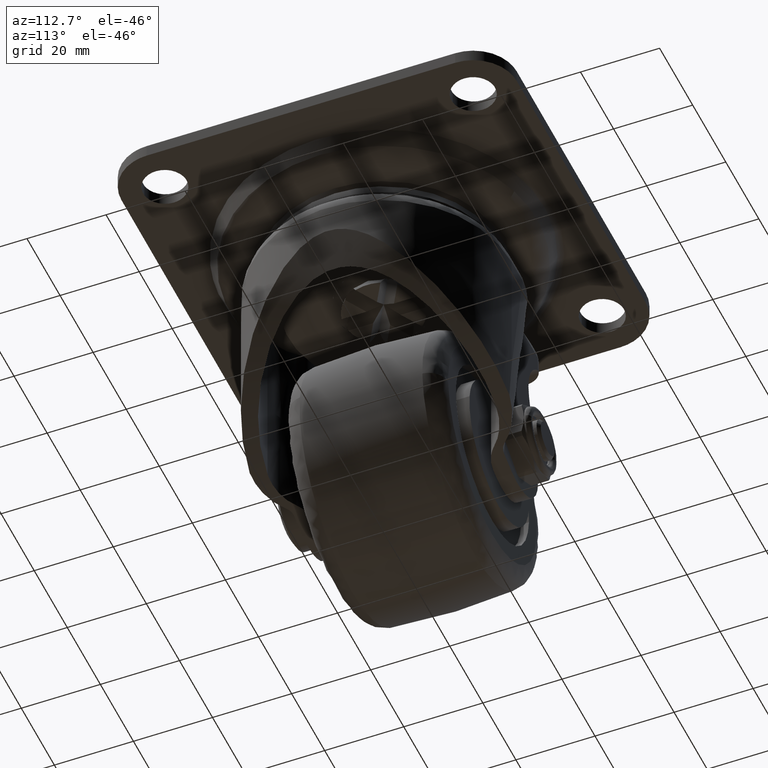
[diagram: clean part render]
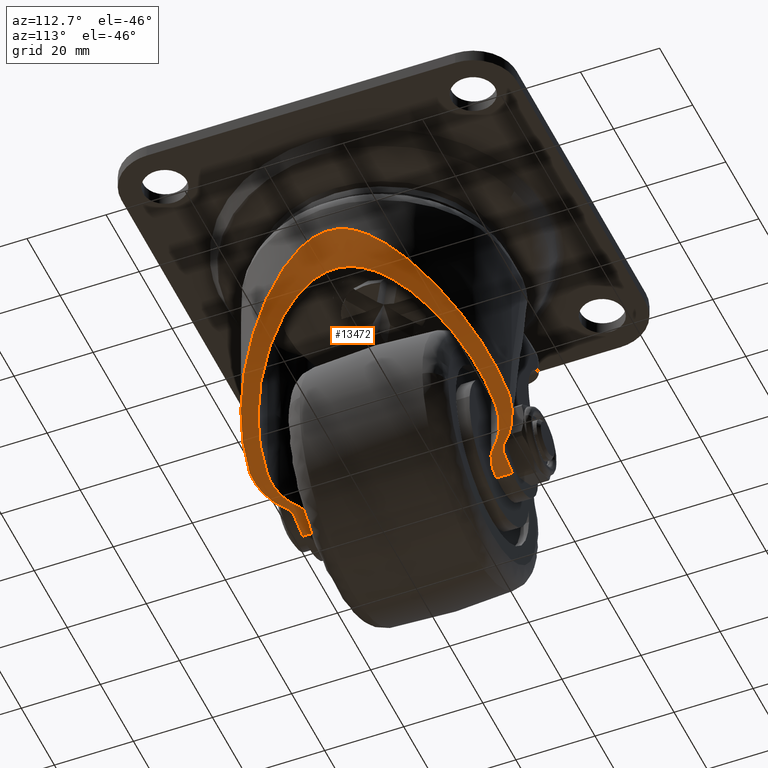
[diagram: same view with one face highlighted and labeled with its STEP entity id]
A machine part, auxiliary view. The second image highlights one B-rep face of the part: STEP entity #13472.
In plain terms, the highlighted face is a freeform B-spline surface patch.
Its self-contained STEP definition (entity closure, byte-faithful):
#12548=CARTESIAN_POINT('',(0.232830167416978,-32.846357652392051,-71.324590027310293));
#12549=VERTEX_POINT('',#12548);
#12557=CARTESIAN_POINT('',(0.232830166705257,32.846357652418703,-71.324590027570991));
#12558=VERTEX_POINT('',#12557);
#12559=CARTESIAN_POINT('',(0.232830167416978,-32.846357652392037,-71.324590027310293));
#12560=CARTESIAN_POINT('',(1.487032370077014,-32.799854193933150,-70.865518084331327));
#12561=CARTESIAN_POINT('',(2.716568204284509,-32.694971646485683,-70.377539065006289));
#12562=CARTESIAN_POINT('',(5.130131427726691,-32.382558781275051,-69.346221203296778));
#12563=CARTESIAN_POINT('',(6.314146117221374,-32.174976172604381,-68.802876387746835));
#12564=CARTESIAN_POINT('',(8.639314372738033,-31.666756698883422,-67.662595743848954));
#12565=CARTESIAN_POINT('',(9.780460625316133,-31.366091709157470,-67.065655678935684));
#12566=CARTESIAN_POINT('',(11.461384834098521,-30.850111365565859,-66.130989563338005));
#12567=CARTESIAN_POINT('',(12.016554383888140,-30.667264933992879,-65.812887837167807));
#12568=CARTESIAN_POINT('',(12.841721474948359,-30.377133740920879,-65.326003838152033));
#12569=CARTESIAN_POINT('',(13.115512310501680,-30.277778518217300,-65.162087080840763));
#12570=CARTESIAN_POINT('',(13.660580598059060,-30.073833568633539,-64.831021930745791));
#12571=CARTESIAN_POINT('',(13.931989494042460,-29.969184466978479,-64.663785818234643));
#12572=CARTESIAN_POINT('',(15.276745760365660,-29.435436140333270,-63.823384436233461));
#12573=CARTESIAN_POINT('',(16.318085818515961,-28.973221839713851,-63.134713861917596));
#12574=CARTESIAN_POINT('',(18.337966194419479,-27.984860307129910,-61.727399687139517));
#12575=CARTESIAN_POINT('',(19.316489243020900,-27.458695699678490,-61.008747685150162));
#12576=CARTESIAN_POINT('',(21.215051876584699,-26.346175611610001,-59.544036820095613));
#12577=CARTESIAN_POINT('',(22.135082365922958,-25.759817749966370,-58.797968277328508));
#12578=CARTESIAN_POINT('',(23.919602461458780,-24.528253539456109,-57.281111876634519));
#12579=CARTESIAN_POINT('',(24.784089284798341,-23.883060389560200,-56.510310248107423));
#12580=CARTESIAN_POINT('',(26.040470471813201,-22.870225706501969,-55.337929449907563));
#12581=CARTESIAN_POINT('',(26.452530223584031,-22.525085529315970,-54.944444272855620));
#12582=CARTESIAN_POINT('',(27.263287051863529,-21.819300060523769,-54.152571791468461));
#12583=CARTESIAN_POINT('',(27.662410819406041,-21.458222469168820,-53.753727288671577));
#12584=CARTESIAN_POINT('',(28.833168806707231,-20.357106730953308,-52.557560857107752));
#12585=CARTESIAN_POINT('',(29.580193048393419,-19.597764155967251,-51.758713928882628));
#12586=CARTESIAN_POINT('',(31.008979783398981,-18.023407177095031,-50.165167491435177));
#12587=CARTESIAN_POINT('',(31.690767167953179,-17.208482771918710,-49.370392740211912));
#12588=CARTESIAN_POINT('',(32.663872997384203,-15.936502898934350,-48.189203876143992));
#12589=CARTESIAN_POINT('',(32.979957225116387,-15.504194590637370,-47.797337557033480));
#12590=CARTESIAN_POINT('',(33.595108269267222,-14.620798918028010,-47.019252069468521));
#12591=CARTESIAN_POINT('',(33.894178712741322,-14.169721678837981,-46.633025138964108));
#12592=CARTESIAN_POINT('',(34.474534418006627,-13.245821147868419,-45.868743849595127));
#12593=CARTESIAN_POINT('',(34.755825905738597,-12.773014596609871,-45.490676852013181));
#12594=CARTESIAN_POINT('',(35.095553465272133,-12.165798002819320,-45.025348804587992));
#12595=CARTESIAN_POINT('',(35.162903200123758,-12.043540485388149,-44.932648805665032));
#12596=CARTESIAN_POINT('',(35.296385315563150,-11.797314461500640,-44.748046563858033));
#12597=CARTESIAN_POINT('',(35.362553200101409,-11.673277192837720,-44.656094504119629));
#12598=CARTESIAN_POINT('',(35.558813021563367,-11.299183348104810,-44.382068149572042));
#12599=CARTESIAN_POINT('',(35.686718555463671,-11.047054281477321,-44.201745415606752));
#12600=CARTESIAN_POINT('',(36.061280259580933,-10.281680598206540,-43.668879467985832));
#12601=CARTESIAN_POINT('',(36.298819302107219,-9.759511430738312,-43.324365320564382));
#12602=CARTESIAN_POINT('',(36.746922242187310,-8.685882561246169,-42.663707888104128));
#12603=CARTESIAN_POINT('',(36.957509715611863,-8.134459254890977,-42.347522538242941));
#12604=CARTESIAN_POINT('',(37.201329978471293,-7.421995648511740,-41.976074904939608));
#12605=CARTESIAN_POINT('',(37.249160715773463,-7.278204546016939,-41.902918740064720));
#12606=CARTESIAN_POINT('',(37.342585032394950,-6.988756513424083,-41.759502607185468));
#12607=CARTESIAN_POINT('',(37.388120564407103,-6.843287380946250,-41.689332373597537));
#12608=CARTESIAN_POINT('',(37.521097864319707,-6.404538422008353,-41.483697620500472));
#12609=CARTESIAN_POINT('',(37.604913792472537,-6.108919601557054,-41.353103371052882));
#12610=CARTESIAN_POINT('',(37.840943130445872,-5.211767175748143,-40.983102078833483));
#12611=CARTESIAN_POINT('',(37.977809171153297,-4.599986840889765,-40.765370654552910));
#12612=CARTESIAN_POINT('',(38.204214282500843,-3.342997834993228,-40.402356412803051));
#12613=CARTESIAN_POINT('',(38.293781870681563,-2.697801028298185,-40.257055301014773));
#12614=CARTESIAN_POINT('',(38.362906145059810,-1.948781954062084,-40.144552588191353));
#12615=CARTESIAN_POINT('',(38.370150944927467,-1.865150951004140,-40.132753137734120));
#12616=CARTESIAN_POINT('',(38.383671868899363,-1.698071101598333,-40.110719969230097));
#12617=CARTESIAN_POINT('',(38.402526242776013,-1.447473253776699,-40.079976358506343));
#12618=CARTESIAN_POINT('',(38.417100302980977,-1.196941337505912,-40.056173782056327));
#12619=CARTESIAN_POINT('',(38.440544272933138,-0.695965689779141,-40.017865219795759));
#12620=CARTESIAN_POINT('',(38.448567635062552,-0.362099552932062,-40.004728423780193));
#12621=CARTESIAN_POINT('',(38.449857598023243,0.639145492566473,-40.002617646210872));
#12622=CARTESIAN_POINT('',(38.420338263872303,1.306170289589202,-40.051048078639653));
#12623=CARTESIAN_POINT('',(38.353151016767256,2.056051184547558,-40.160431867277623));
#12624=CARTESIAN_POINT('',(38.345206588401567,2.139428877387438,-40.173357966946021));
#12625=CARTESIAN_POINT('',(38.328448992514488,2.305469577528087,-40.200603051308107));
#12626=CARTESIAN_POINT('',(38.301991580142293,2.553681760171381,-40.243589108822128));
#12627=CARTESIAN_POINT('',(38.271652577080168,2.799408215672902,-40.292770224801643));
#12628=CARTESIAN_POINT('',(38.206001401475312,3.287701895175813,-40.398981081946957));
#12629=CARTESIAN_POINT('',(38.155607724371293,3.609021191276224,-40.480247452125951));
#12630=CARTESIAN_POINT('',(37.985986840777102,4.561498587095284,-40.752337789973403));
#12631=CARTESIAN_POINT('',(37.848379837090860,5.181212257906449,-40.971365448438881));
#12632=CARTESIAN_POINT('',(37.649485657840138,5.940022966572677,-41.283250167089072));
#12633=CARTESIAN_POINT('',(37.608422657582572,6.090730222655529,-41.347436592810112));
#12634=CARTESIAN_POINT('',(37.524145979250477,6.389082456447125,-41.478707668028640));
#12635=CARTESIAN_POINT('',(37.480887761914232,6.536898628415255,-41.545862215873647));
#12636=CARTESIAN_POINT('',(37.347911068247562,6.976534682730478,-41.751541617410012));
#12637=CARTESIAN_POINT('',(37.254995508339753,7.264549508955494,-41.894273180886870));
#12638=CARTESIAN_POINT('',(36.964512776959857,8.115204324049293,-42.336940032720442));
#12639=CARTESIAN_POINT('',(36.755261607360012,8.664534613411117,-42.651248769435391));
#12640=CARTESIAN_POINT('',(36.309590118538111,9.735015152465691,-43.308642591843054));
#12641=CARTESIAN_POINT('',(36.073147919800867,10.256133325459521,-43.651766594848603));
#12642=CARTESIAN_POINT('',(35.700013550723128,11.020487212527611,-44.182937537636398));
#12643=CARTESIAN_POINT('',(35.572547772290513,11.272370339845841,-44.362759728308703));
#12644=CARTESIAN_POINT('',(35.376890498865762,11.646216389556351,-44.636131714641039));
#12645=CARTESIAN_POINT('',(35.310927891758119,11.770167979575650,-44.727862973119052));
#12646=CARTESIAN_POINT('',(35.177539867161983,12.016798683206069,-44.912464159294110));
#12647=CARTESIAN_POINT('',(35.110093131251681,12.139513644907280,-45.005362760756512));
#12648=CARTESIAN_POINT('',(34.770091147823187,12.748561534228520,-45.471387191662167));
#12649=CARTESIAN_POINT('',(34.488637677341352,13.222539666438680,-45.849919723873043));
#12650=CARTESIAN_POINT('',(33.908101661346770,14.148347598388140,-46.614929184340689));
#12651=CARTESIAN_POINT('',(33.609012679695411,14.600159672573851,-47.001419127703429));
#12652=CARTESIAN_POINT('',(32.993989461251083,15.484685238084211,-47.779823390505797));
#12653=CARTESIAN_POINT('',(32.678051492476513,15.917388076952520,-48.171745649512829));
#12654=CARTESIAN_POINT('',(31.705660504220400,17.190140495638079,-49.352794304367812));
#12655=CARTESIAN_POINT('',(31.024716814573800,18.005036808651500,-50.147064722523503));
#12656=CARTESIAN_POINT('',(29.598512678636439,19.578583745720490,-51.738819811970266));
#12657=CARTESIAN_POINT('',(28.853226305146869,20.337140514156150,-52.536380470203142));
#12658=CARTESIAN_POINT('',(27.685895981739769,21.436661853008321,-53.730061640128334));
#12659=CARTESIAN_POINT('',(27.288535027123480,21.796748415546649,-54.127533611406243));
#12660=CARTESIAN_POINT('',(26.679826787436902,22.327478627004272,-54.722614265082662));
#12661=CARTESIAN_POINT('',(26.474730378775451,22.502883886259280,-54.920862003953559));
#12662=CARTESIAN_POINT('',(26.061494647271601,22.849555492196160,-55.315736586367670));
#12663=CARTESIAN_POINT('',(25.853215877701810,23.020946265287449,-55.512501685936563));
#12664=CARTESIAN_POINT('',(24.803484814043710,23.868307852702099,-56.492822515905317));
#12665=CARTESIAN_POINT('',(23.937066149792649,24.515616391674250,-57.265835657914771));
#12666=CARTESIAN_POINT('',(22.149388844943900,25.750518814647091,-58.786231990970897));
#12667=CARTESIAN_POINT('',(21.228132302717391,26.338097995326521,-59.533629112877733));
#12668=CARTESIAN_POINT('',(19.328035681303628,27.452337146760229,-61.000152084638621));
#12669=CARTESIAN_POINT('',(18.349203733522319,27.978998258579189,-61.719287614523822));
#12670=CARTESIAN_POINT('',(16.329896650638752,28.967801808270188,-63.126764203282768));
#12671=CARTESIAN_POINT('',(15.289437212750940,29.429960089711891,-63.815113550472937));
#12672=CARTESIAN_POINT('',(13.946757943057170,29.963428739494368,-64.654638355180253));
#12673=CARTESIAN_POINT('',(13.676112012920580,30.067903686444641,-64.821497041018645));
#12674=CARTESIAN_POINT('',(13.130489291831910,30.272286805819078,-65.153076722947858));
#12675=CARTESIAN_POINT('',(12.855936551432650,30.372030455161401,-65.317535674011935));
#12676=CARTESIAN_POINT('',(12.029166859005050,30.663033150813192,-65.805601393073488));
#12677=CARTESIAN_POINT('',(11.472975356626479,30.846394581042919,-66.124424540256783));
#12678=CARTESIAN_POINT('',(9.789139095469174,31.363741140216302,-67.061067086004371));
#12679=CARTESIAN_POINT('',(8.646255895819293,31.665078220811541,-67.659074326319299));
#12680=CARTESIAN_POINT('',(6.318112767715578,32.174269662507740,-68.801047803876102));
#12681=CARTESIAN_POINT('',(5.132859775818926,32.382151449036172,-69.345018135600469));
#12682=CARTESIAN_POINT('',(2.717433877789981,32.694913686172953,-70.377206348481977));
#12683=CARTESIAN_POINT('',(1.487273031691567,32.799845270675732,-70.865429995682817));
#12684=CARTESIAN_POINT('',(0.232830166705257,32.846357652418703,-71.324590027570991));
#12685=B_SPLINE_CURVE_WITH_KNOTS('',3,(#12559,#12560,#12561,#12562,#12563,#12564,#12565,#12566,#12567,#12568,#12569,#12570,#12571,#12572,#12573,#12574,#12575,#12576,#12577,#12578,#12579,#12580,#12581,#12582,#12583,#12584,#12585,#12586,#12587,#12588,#12589,#12590,#12591,#12592,#12593,#12594,#12595,#12596,#12597,#12598,#12599,#12600,#12601,#12602,#12603,#12604,#12605,#12606,#12607,#12608,#12609,#12610,#12611,#12612,#12613,#12614,#12615,#12616,#12617,#12618,#12619,#12620,#12621,#12622,#12623,#12624,#12625,#12626,#12627,#12628,#12629,#12630,#12631,#12632,#12633,#12634,#12635,#12636,#12637,#12638,#12639,#12640,#12641,#12642,#12643,#12644,#12645,#12646,#12647,#12648,#12649,#12650,#12651,#12652,#12653,#12654,#12655,#12656,#12657,#12658,#12659,#12660,#12661,#12662,#12663,#12664,#12665,#12666,#12667,#12668,#12669,#12670,#12671,#12672,#12673,#12674,#12675,#12676,#12677,#12678,#12679,#12680,#12681,#12682,#12683,#12684),.UNSPECIFIED.,.F.,.U.,(4,2,2,2,2,2,2,2,2,2,2,2,2,2,2,2,2,2,2,2,2,2,2,2,2,2,2,2,2,1,2,2,2,2,1,2,2,2,2,2,2,2,2,2,2,2,2,2,2,2,2,2,2,2,2,2,2,2,2,2,2,2,2,4),(0.0,0.031250000000000,0.062500000000000,0.093750000000000,0.109375000000000,0.117187500000000,0.125000000000000,0.156250000000000,0.187500000000000,0.218750000000000,0.250000000000000,0.265625000000000,0.281250000000000,0.312500000000000,0.343750000000000,0.359375000000000,0.375000000000000,0.390625000000000,0.394531250000000,0.398437500000000,0.406250000000000,0.421875000000000,0.437500000000000,0.441406250000000,0.445312500000000,0.453125000000000,0.468750000000000,0.484374999999999,0.486328124999999,0.488281249999999,0.492187499999999,0.500000000000000,0.515625000000000,0.517578125000000,0.519531250000000,0.523437500000000,0.531250000000000,0.546875000000000,0.550781250000000,0.554687500000000,0.562500000000000,0.578125000000000,0.593750000000000,0.601562500000000,0.605468750000000,0.609375000000000,0.625000000000000,0.640625000000001,0.656250000000001,0.687500000000001,0.718750000000001,0.734375000000001,0.742187500000001,0.750000000000001,0.781250000000002,0.812500000000002,0.843750000000002,0.875000000000002,0.882812500000002,0.890625000000002,0.906250000000002,0.937500000000001,0.968750000000000,1.0),.UNSPECIFIED.);
#12686=EDGE_CURVE('',#12549,#12558,#12685,.T.);
#12712=CARTESIAN_POINT('',(-17.876679579009849,22.500000000000000,-75.501103269493200));
#12713=VERTEX_POINT('',#12712);
#12770=CARTESIAN_POINT('',(-17.876679579009849,26.500000000000000,-75.501103269493200));
#12771=VERTEX_POINT('',#12770);
#12787=CARTESIAN_POINT('',(-17.876679579009849,26.500000000000000,-75.501103269493200));
#12788=CARTESIAN_POINT('',(-17.876679579009849,22.500000000000000,-75.501103269493200));
#12789=QUASI_UNIFORM_CURVE('',1,(#12787,#12788),.UNSPECIFIED.,.F.,.U.);
#12790=EDGE_CURVE('',#12771,#12713,#12789,.T.);
#12811=CARTESIAN_POINT('',(-17.876679579009849,-22.500000000000000,-75.501103269493200));
#12812=VERTEX_POINT('',#12811);
#12828=CARTESIAN_POINT('',(-17.876679579009849,-26.500000000000000,-75.501103269493200));
#12829=VERTEX_POINT('',#12828);
#12830=CARTESIAN_POINT('',(-17.876679579009849,-22.500000000000000,-75.501103269493200));
#12831=CARTESIAN_POINT('',(-17.876679579009849,-26.500000000000000,-75.501103269493200));
#12832=QUASI_UNIFORM_CURVE('',1,(#12830,#12831),.UNSPECIFIED.,.F.,.U.);
#12833=EDGE_CURVE('',#12812,#12829,#12832,.T.);
#13060=CARTESIAN_POINT('',(39.797046217230722,34.488675535038972,-37.707545313512547));
#13061=CARTESIAN_POINT('',(39.797046217230722,-34.529733482077823,-37.707545313512547));
#13062=CARTESIAN_POINT('',(19.697455050496767,34.488675535038965,-73.384386352995676));
#13063=CARTESIAN_POINT('',(19.697455050496767,-34.529733482077830,-73.384386352995676));
#13064=CARTESIAN_POINT('',(-21.182278384622773,34.488675535038972,-75.767230430976284));
#13065=CARTESIAN_POINT('',(-21.182278384622773,-34.529733482077823,-75.767230430976284));
#13073=(BOUNDED_SURFACE()B_SPLINE_SURFACE(1,2,((#13060,#13062,#13064),(#13061,#13063,#13065)),.UNSPECIFIED.,.F.,.F.,.U.)B_SPLINE_SURFACE_WITH_KNOTS((2,2),(3,3),(0.0,69.018409017116795),(0.0,76.563854094344777),.UNSPECIFIED.)GEOMETRIC_REPRESENTATION_ITEM()RATIONAL_B_SPLINE_SURFACE(((1.0,0.876268924757007,0.996744951467555),(1.0,0.876268924757007,0.996744951467555)))REPRESENTATION_ITEM('')SURFACE());
#13074=ORIENTED_EDGE('',*,*,#12686,.F.);
#13075=CARTESIAN_POINT('',(-10.181566704599421,-27.578856664414101,-74.303561666217604));
#13076=VERTEX_POINT('',#13075);
#13077=CARTESIAN_POINT('',(-10.181566704599421,-27.578856664414101,-74.303561666217604));
#13078=CARTESIAN_POINT('',(-9.851037112674362,-27.975285704206019,-74.234379869411626));
#13079=CARTESIAN_POINT('',(-9.503330936508398,-28.350052385319270,-74.159275528325082));
#13080=CARTESIAN_POINT('',(-8.775425824399001,-29.058117680902100,-73.996084503044997));
#13081=CARTESIAN_POINT('',(-8.395220781606049,-29.391409465701571,-73.907998881167472));
#13082=CARTESIAN_POINT('',(-7.603116055095361,-30.017053378531280,-73.717383438205545));
#13083=CARTESIAN_POINT('',(-7.191215542689001,-30.309405313501319,-73.614856426792599));
#13084=CARTESIAN_POINT('',(-6.549489083674553,-30.716725946941260,-73.448850767459490));
#13085=CARTESIAN_POINT('',(-6.331177632265849,-30.847484774188789,-73.391359208454077));
#13086=CARTESIAN_POINT('',(-5.891568783645475,-31.095658049858571,-73.273411860340246));
#13087=CARTESIAN_POINT('',(-5.669737030207993,-31.213440401900609,-73.212821718910789));
#13088=CARTESIAN_POINT('',(-4.998392883233848,-31.548357999503061,-73.026063900263424));
#13089=CARTESIAN_POINT('',(-4.543047199289806,-31.747106678045640,-72.894913743482348));
#13090=CARTESIAN_POINT('',(-3.617619517868861,-32.096999448438780,-72.618476521870136));
#13091=CARTESIAN_POINT('',(-3.147535885927589,-32.248140397971277,-72.473190756159966));
#13092=CARTESIAN_POINT('',(-2.550935203875251,-32.407377672105753,-72.282111677718575));
#13093=CARTESIAN_POINT('',(-2.431164128605089,-32.437737473713838,-72.243421784234485));
#13094=CARTESIAN_POINT('',(-2.190720969167179,-32.495470531206742,-72.165075836598049));
#13095=CARTESIAN_POINT('',(-2.069941067375603,-32.522866464586599,-72.125383969525075));
#13096=CARTESIAN_POINT('',(-1.707017326109828,-32.600387478912317,-72.005086050241033));
#13097=CARTESIAN_POINT('',(-1.464891542972800,-32.645733227872022,-71.923459932053163));
#13098=CARTESIAN_POINT('',(-0.738046062984854,-32.763209420260807,-71.674260103767836));
#13099=CARTESIAN_POINT('',(-0.252862313296284,-32.816822174389181,-71.502366617351697));
#13100=CARTESIAN_POINT('',(0.232830167416973,-32.846357652392051,-71.324590027310293));
#13101=B_SPLINE_CURVE_WITH_KNOTS('',3,(#13077,#13078,#13079,#13080,#13081,#13082,#13083,#13084,#13085,#13086,#13087,#13088,#13089,#13090,#13091,#13092,#13093,#13094,#13095,#13096,#13097,#13098,#13099,#13100),.UNSPECIFIED.,.F.,.U.,(4,2,2,2,2,2,2,2,2,2,2,4),(0.0,0.125000000000001,0.250000000000002,0.375000000000003,0.437500000000003,0.500000000000003,0.625000000000004,0.750000000000006,0.781250000000005,0.812500000000005,0.875000000000004,1.0),.UNSPECIFIED.);
#13102=EDGE_CURVE('',#13076,#12549,#13101,.T.);
#13103=ORIENTED_EDGE('',*,*,#13102,.F.);
#13104=CARTESIAN_POINT('',(-12.485738634844100,-26.500000000000000,-74.748329386114008));
#13105=VERTEX_POINT('',#13104);
#13106=CARTESIAN_POINT('',(-10.181566704599421,-27.578856664414101,-74.303561666217604));
#13107=CARTESIAN_POINT('',(-10.323691307614761,-27.408395921166971,-74.333309185493164));
#13108=CARTESIAN_POINT('',(-10.481528320229501,-27.257069214624629,-74.365917798337037));
#13109=CARTESIAN_POINT('',(-10.740725179608010,-27.057290968137341,-74.418430342145015));
#13110=CARTESIAN_POINT('',(-10.830899559459571,-26.995276487563800,-74.436541274863231));
#13111=CARTESIAN_POINT('',(-10.971998698946180,-26.909319690455739,-74.464587330926676));
#13112=CARTESIAN_POINT('',(-11.019894689266360,-26.881927225899460,-74.474060353181727));
#13113=CARTESIAN_POINT('',(-11.116495449349150,-26.830135467434900,-74.493066127597174));
#13114=CARTESIAN_POINT('',(-11.165327690526681,-26.805657063670850,-74.502624261879546));
#13115=CARTESIAN_POINT('',(-11.412105537565720,-26.690228710526839,-74.550666759630786));
#13116=CARTESIAN_POINT('',(-11.617808512942521,-26.619919844858149,-74.589890507653323));
#13117=CARTESIAN_POINT('',(-11.885545699752869,-26.560139677561072,-74.639688791010784));
#13118=CARTESIAN_POINT('',(-11.939697704810120,-26.549600546356299,-74.649700121564649));
#13119=CARTESIAN_POINT('',(-12.048077041083131,-26.531587972891899,-74.669612307711191));
#13120=CARTESIAN_POINT('',(-12.102420428031669,-26.524084489101629,-74.679534913843653));
#13121=CARTESIAN_POINT('',(-12.265909766373310,-26.506056251145541,-74.709198983234032));
#13122=CARTESIAN_POINT('',(-12.375513587042191,-26.500000000000000,-74.728836482404944));
#13123=CARTESIAN_POINT('',(-12.485738634844100,-26.500000000000000,-74.748329386114108));
#13124=B_SPLINE_CURVE_WITH_KNOTS('',3,(#13106,#13107,#13108,#13109,#13110,#13111,#13112,#13113,#13114,#13115,#13116,#13117,#13118,#13119,#13120,#13121,#13122,#13123),.UNSPECIFIED.,.F.,.U.,(4,2,2,2,2,2,2,2,4),(0.0,0.249999999999999,0.374999999999999,0.437499999999998,0.499999999999998,0.750000000000002,0.812500000000002,0.875000000000002,1.0),.UNSPECIFIED.);
#13125=EDGE_CURVE('',#13076,#13105,#13124,.T.);
#13126=ORIENTED_EDGE('',*,*,#13125,.T.);
#13127=CARTESIAN_POINT('',(-12.485738634844100,-26.500000000000000,-74.748329386114008));
#13128=CARTESIAN_POINT('',(-15.167541599746395,-26.499999999999996,-75.222594825601888));
#13129=CARTESIAN_POINT('',(-17.876679579009849,-26.500000000000000,-75.501103269493200));
#13137=(BOUNDED_CURVE()B_SPLINE_CURVE(2,(#13127,#13128,#13129),.UNSPECIFIED.,.F.,.U.)CURVE()GEOMETRIC_REPRESENTATION_ITEM()QUASI_UNIFORM_CURVE()RATIONAL_B_SPLINE_CURVE((1.0,0.999341362783582,1.0))REPRESENTATION_ITEM(''));
#13138=EDGE_CURVE('',#13105,#12829,#13137,.T.);
#13139=ORIENTED_EDGE('',*,*,#13138,.T.);
#13140=ORIENTED_EDGE('',*,*,#12833,.F.);
#13141=CARTESIAN_POINT('',(-15.758470243372800,-22.500000000000000,-75.252863711003016));
#13142=VERTEX_POINT('',#13141);
#13143=CARTESIAN_POINT('',(-17.876679579009849,-22.500000000000000,-75.501103269493200));
#13144=CARTESIAN_POINT('',(-16.815809968137003,-22.500000000000000,-75.392043400843320));
#13145=CARTESIAN_POINT('',(-15.758470243372800,-22.500000000000000,-75.252863711003016));
#13153=(BOUNDED_CURVE()B_SPLINE_CURVE(2,(#13143,#13144,#13145),.UNSPECIFIED.,.F.,.U.)CURVE()GEOMETRIC_REPRESENTATION_ITEM()QUASI_UNIFORM_CURVE()RATIONAL_B_SPLINE_CURVE((1.0,0.999898918582804,1.0))REPRESENTATION_ITEM(''));
#13154=EDGE_CURVE('',#12812,#13142,#13153,.T.);
#13155=ORIENTED_EDGE('',*,*,#13154,.T.);
#13156=CARTESIAN_POINT('',(-10.093313650152520,-25.017332216965350,-74.285034393227292));
#13157=VERTEX_POINT('',#13156);
#13158=CARTESIAN_POINT('',(-10.093313650152520,-25.017332216965350,-74.285034393227292));
#13159=CARTESIAN_POINT('',(-10.271555484457290,-24.816070066546690,-74.322565218050514));
#13160=CARTESIAN_POINT('',(-10.459193722926210,-24.626932755235732,-74.361396621920960));
#13161=CARTESIAN_POINT('',(-10.852162694115931,-24.271363346779431,-74.441003489346969));
#13162=CARTESIAN_POINT('',(-11.057498348660291,-24.104937886513241,-74.481780791974160));
#13163=CARTESIAN_POINT('',(-11.485516648861481,-23.794230928787321,-74.564764201143291));
#13164=CARTESIAN_POINT('',(-11.708199653033390,-23.649950141718250,-74.606971360715548));
#13165=CARTESIAN_POINT('',(-12.055469425721521,-23.450354165654421,-74.671037820202272));
#13166=CARTESIAN_POINT('',(-12.173529189061631,-23.386614637894560,-74.692534081604876));
#13167=CARTESIAN_POINT('',(-12.411340629280970,-23.266204423554310,-74.735232537313166));
#13168=CARTESIAN_POINT('',(-12.531424496147689,-23.209333058631071,-74.756496731244312));
#13169=CARTESIAN_POINT('',(-12.895146624769200,-23.048507740525629,-74.819972384825959));
#13170=CARTESIAN_POINT('',(-13.389343964406491,-22.860117994843360,-74.903758449683068));
#13171=CARTESIAN_POINT('',(-13.901844767265221,-22.723070924096412,-74.985277950740297));
#13172=CARTESIAN_POINT('',(-14.293268537737960,-22.639980792014772,-75.045386041010374));
#13173=CARTESIAN_POINT('',(-14.425196841584400,-22.615533659506230,-75.065290960493599));
#13174=CARTESIAN_POINT('',(-14.689997028523390,-22.573609935195609,-75.104512625334209));
#13175=CARTESIAN_POINT('',(-14.822740159707569,-22.556135971707150,-75.123812073697962));
#13176=CARTESIAN_POINT('',(-15.221997139442070,-22.514136101706899,-75.180761694688456));
#13177=CARTESIAN_POINT('',(-15.489535844174750,-22.500000000000000,-75.217462900871126));
#13178=CARTESIAN_POINT('',(-15.758470243372850,-22.500000000000000,-75.252863711002917));
#13179=B_SPLINE_CURVE_WITH_KNOTS('',3,(#13158,#13159,#13160,#13161,#13162,#13163,#13164,#13165,#13166,#13167,#13168,#13169,#13170,#13171,#13172,#13173,#13174,#13175,#13176,#13177,#13178),.UNSPECIFIED.,.F.,.U.,(4,2,2,2,2,2,1,2,2,2,4),(0.0,0.124999999999999,0.249999999999998,0.374999999999997,0.437499999999996,0.499999999999996,0.624999999999997,0.749999999999998,0.812499999999999,0.874999999999999,1.0),.UNSPECIFIED.);
#13180=EDGE_CURVE('',#13157,#13142,#13179,.T.);
#13181=ORIENTED_EDGE('',*,*,#13180,.F.);
#13182=CARTESIAN_POINT('',(-1.228536355637912,-28.873505000000101,-71.842425001255606));
#13183=VERTEX_POINT('',#13182);
#13184=CARTESIAN_POINT('',(-10.093313650152540,-25.017332216965389,-74.285034393227349));
#13185=CARTESIAN_POINT('',(-9.811954354638369,-25.335029670405032,-74.225791026071235));
#13186=CARTESIAN_POINT('',(-9.514026345614013,-25.633797199400131,-74.161372308689636));
#13187=CARTESIAN_POINT('',(-8.886668669519706,-26.195003563718991,-74.021272054799041));
#13188=CARTESIAN_POINT('',(-8.557232833609763,-26.457436045230100,-73.945591516309150));
#13189=CARTESIAN_POINT('',(-8.126038035581340,-26.762891316665758,-73.843158742666603));
#13190=CARTESIAN_POINT('',(-8.038695026516631,-26.822936097175649,-73.822247780509315));
#13191=CARTESIAN_POINT('',(-7.862826816660459,-26.940247527997929,-73.779802565810357));
#13192=CARTESIAN_POINT('',(-7.597291778689200,-27.112039289306519,-73.715211491396389));
#13193=CARTESIAN_POINT('',(-7.326691827829495,-27.271569009521251,-73.647819410793588));
#13194=CARTESIAN_POINT('',(-6.779023367848252,-27.574826070342240,-73.509202995168351));
#13195=CARTESIAN_POINT('',(-6.405305170189605,-27.755970219838041,-73.411687372261909));
#13196=CARTESIAN_POINT('',(-5.641657430049897,-28.077960760415770,-73.205806424596645));
#13197=CARTESIAN_POINT('',(-5.251725052093041,-28.218801620897750,-73.097441924950004));
#13198=CARTESIAN_POINT('',(-4.754439101762872,-28.369937245249730,-72.954699224124354));
#13199=CARTESIAN_POINT('',(-4.654636397344729,-28.398867054818670,-72.925828209883704));
#13200=CARTESIAN_POINT('',(-4.455031784671339,-28.453979945316629,-72.867635100210933));
#13201=CARTESIAN_POINT('',(-4.155321102800982,-28.532621326586700,-72.779581456253169));
#13202=CARTESIAN_POINT('',(-3.854734422855259,-28.599417477127020,-72.689226559986636));
#13203=CARTESIAN_POINT('',(-3.252469487019089,-28.717713017074828,-72.505419760595629));
#13204=CARTESIAN_POINT('',(-2.849509019554989,-28.776220756090911,-72.378754001568709));
#13205=CARTESIAN_POINT('',(-2.040962228352844,-28.854118428099820,-72.116980088063684));
#13206=CARTESIAN_POINT('',(-1.635375348557087,-28.873504996057779,-71.981872249263944));
#13207=CARTESIAN_POINT('',(-1.228536355637910,-28.873505000000069,-71.842425001255592));
#13208=B_SPLINE_CURVE_WITH_KNOTS('',3,(#13184,#13185,#13186,#13187,#13188,#13189,#13190,#13191,#13192,#13193,#13194,#13195,#13196,#13197,#13198,#13199,#13200,#13201,#13202,#13203,#13204,#13205,#13206,#13207),.UNSPECIFIED.,.F.,.U.,(4,2,2,2,1,2,2,2,2,1,2,2,4),(0.0,0.124999999999998,0.249999999999996,0.281249999999997,0.312499999999997,0.374999999999997,0.499999999999996,0.624999999999996,0.656249999999997,0.687499999999997,0.749999999999998,0.874999999999999,1.0),.UNSPECIFIED.);
#13209=EDGE_CURVE('',#13157,#13183,#13208,.T.);
#13210=ORIENTED_EDGE('',*,*,#13209,.T.);
#13211=CARTESIAN_POINT('',(-1.228536158738858,28.873505000000101,-71.842424933766992));
#13212=VERTEX_POINT('',#13211);
#13213=CARTESIAN_POINT('',(-1.228536355637912,-28.873505000000101,-71.842425001255606));
#13214=CARTESIAN_POINT('',(-0.131497172633602,-28.873505000000112,-71.466406237838626));
#13215=CARTESIAN_POINT('',(0.945706109971918,-28.821227118329890,-71.068789007877655));
#13216=CARTESIAN_POINT('',(3.063652193020786,-28.624332732421681,-70.232275309336472));
#13217=CARTESIAN_POINT('',(4.104384212324145,-28.479669942692102,-69.793374619320829));
#13218=CARTESIAN_POINT('',(6.151628110804086,-28.106103106054899,-68.875810969070542));
#13219=CARTESIAN_POINT('',(7.158133897722530,-27.877175159115978,-68.397144674718888));
#13220=CARTESIAN_POINT('',(9.138473649218437,-27.340222718838959,-67.401288103263909));
#13221=CARTESIAN_POINT('',(10.112304377540150,-27.032188775442481,-66.884094689693811));
#13222=CARTESIAN_POINT('',(11.309791844010100,-26.599378274342499,-66.214184220948368));
#13223=CARTESIAN_POINT('',(11.548298030382661,-26.510421948520641,-66.079030872907907));
#13224=CARTESIAN_POINT('',(12.023338423695540,-26.327739555596569,-65.806397166907459));
#13225=CARTESIAN_POINT('',(12.259742812926421,-26.234056258397072,-65.668986850689961));
#13226=CARTESIAN_POINT('',(12.962893157967679,-25.947198945571110,-65.255161470137281));
#13227=CARTESIAN_POINT('',(13.424618228425789,-25.747828776966031,-64.976559176602166));
#13228=CARTESIAN_POINT('',(14.789571536106781,-25.126211550727181,-64.133080304163101));
#13229=CARTESIAN_POINT('',(15.672621630141940,-24.680534632516260,-63.560525548775942));
#13230=CARTESIAN_POINT('',(17.388518534634329,-23.729420288579220,-62.397598816943550));
#13231=CARTESIAN_POINT('',(18.221358517026889,-23.223982487612432,-61.807217620221621));
#13232=CARTESIAN_POINT('',(19.839125109187702,-22.153641098382788,-60.611582128169758));
#13233=CARTESIAN_POINT('',(20.624051646835330,-21.588752807914261,-60.006314319993130));
#13234=CARTESIAN_POINT('',(22.147067549432080,-20.397144877225880,-58.784484655629022));
#13235=CARTESIAN_POINT('',(22.885165102731680,-19.770464014604759,-58.167900253750091));
#13236=CARTESIAN_POINT('',(23.778357541065919,-18.944845311351571,-57.393068830567458));
#13237=CARTESIAN_POINT('',(23.955505506759280,-18.777603817322390,-57.237911398294052));
#13238=CARTESIAN_POINT('',(24.305608175235040,-18.439950679340988,-56.928382088530427));
#13239=CARTESIAN_POINT('',(24.478720114367398,-18.269395629752420,-56.773874584681970));
#13240=CARTESIAN_POINT('',(24.992254618865491,-17.752428987006621,-56.311291486529008));
#13241=CARTESIAN_POINT('',(25.326881154749099,-17.400724585830289,-56.004149441449457));
#13242=CARTESIAN_POINT('',(26.307524884523069,-16.323214144373811,-55.087996231334650));
#13243=CARTESIAN_POINT('',(26.930416484168511,-15.575208543887550,-54.484114330615263));
#13244=CARTESIAN_POINT('',(27.816543601375191,-14.400880730902070,-53.596825981838847));
#13245=CARTESIAN_POINT('',(28.103859207925069,-14.000674133158901,-53.304183860834812));
#13246=CARTESIAN_POINT('',(28.661669679377258,-13.180730136378020,-52.727023520269881));
#13247=CARTESIAN_POINT('',(28.932168251459789,-12.760999975788820,-52.442499700973400));
#13248=CARTESIAN_POINT('',(29.324508949799618,-12.114755527445860,-52.023593963463263));
#13249=CARTESIAN_POINT('',(29.453051508678730,-11.896559909780660,-51.885276528848500));
#13250=CARTESIAN_POINT('',(29.705483686956651,-11.454187268537950,-51.611640374523482));
#13251=CARTESIAN_POINT('',(29.829460697246560,-11.229828215355839,-51.476223044438044));
#13252=CARTESIAN_POINT('',(30.192211179790110,-10.550677630127129,-51.077174831807852));
#13253=CARTESIAN_POINT('',(30.422423041968209,-10.088827174804459,-50.820077960954762));
#13254=CARTESIAN_POINT('',(30.857977806120630,-9.144516580729382,-50.327471751979708));
#13255=CARTESIAN_POINT('',(31.063327923336740,-8.662063848264383,-50.091953148253360));
#13256=CARTESIAN_POINT('',(31.446835842137190,-7.673369080114002,-49.647159448254619));
#13257=CARTESIAN_POINT('',(31.625004998146860,-7.167138230271871,-49.437870758351480));
#13258=CARTESIAN_POINT('',(31.828657524004399,-6.516857030326140,-49.196376949786092));
#13259=CARTESIAN_POINT('',(31.868432159599081,-6.385923148402380,-49.149087814174763));
#13260=CARTESIAN_POINT('',(31.946005062288119,-6.122221156309947,-49.056638312466653));
#13261=CARTESIAN_POINT('',(31.983842171055059,-5.989305086908438,-49.011431286284100));
#13262=CARTESIAN_POINT('',(32.093808892696693,-5.589442641461164,-48.879747571209990));
#13263=CARTESIAN_POINT('',(32.162508043698352,-5.321037553063732,-48.797073831477960));
#13264=CARTESIAN_POINT('',(32.354328194042672,-4.510060711804988,-48.565355976911491));
#13265=CARTESIAN_POINT('',(32.463195461075550,-3.961734362487002,-48.432600636741043));
#13266=CARTESIAN_POINT('',(32.640019012572793,-2.848120436401683,-48.216005093596493));
#13267=CARTESIAN_POINT('',(32.707979651371723,-2.282833155648210,-48.132167030573257));
#13268=CARTESIAN_POINT('',(32.765058503291378,-1.564475033197991,-48.061636979013002));
#13269=CARTESIAN_POINT('',(32.775078513145182,-1.420215391169169,-48.049245323396789));
#13270=CARTESIAN_POINT('',(32.792260320162562,-1.130489067867468,-48.027986789583267));
#13271=CARTESIAN_POINT('',(32.799398843010422,-0.985328152340046,-48.019148725684907));
#13272=CARTESIAN_POINT('',(32.816364390057103,-0.551185131138233,-47.998138271227837));
#13273=CARTESIAN_POINT('',(32.821796714070572,-0.262659212323270,-47.991403241268912));
#13274=CARTESIAN_POINT('',(32.820126920995129,1.175536690106472,-47.993472618905301));
#13275=CARTESIAN_POINT('',(32.726737404013477,2.311894521417806,-48.109826753838533));
#13276=CARTESIAN_POINT('',(32.524286542045623,3.575598077658771,-48.357762324116237));
#13277=CARTESIAN_POINT('',(32.500413317554887,3.715930541563192,-48.386959186295492));
#13278=CARTESIAN_POINT('',(32.450069335547177,3.995645025568134,-48.448424692936143));
#13279=CARTESIAN_POINT('',(32.370894802518308,4.412509279284026,-48.544940257499569));
#13280=CARTESIAN_POINT('',(32.281122939246572,4.821583772629444,-48.653816908775887));
#13281=CARTESIAN_POINT('',(32.088321929997967,5.630137105113317,-48.886624573404042));
#13282=CARTESIAN_POINT('',(31.942146548025349,6.156404212487407,-49.061861257796743));
#13283=CARTESIAN_POINT('',(31.618180261250430,7.186907335877537,-49.445899555223377));
#13284=CARTESIAN_POINT('',(31.440379474720029,7.691136794099671,-49.654710759593279));
#13285=CARTESIAN_POINT('',(31.151944702917429,8.433014434275869,-49.989141772833023));
#13286=CARTESIAN_POINT('',(31.052170568959109,8.677890654764212,-50.104162935833401));
#13287=CARTESIAN_POINT('',(30.845621626661138,9.163098299937696,-50.340723226748032));
#13288=CARTESIAN_POINT('',(30.738681678848209,9.403762240867026,-50.462446927746733));
#13289=CARTESIAN_POINT('',(30.409934057008449,10.114599235911740,-50.834088421828710));
#13290=CARTESIAN_POINT('',(30.179707411146200,10.574989301669820,-51.091042137038457));
#13291=CARTESIAN_POINT('',(29.699189566209739,11.472781289638149,-51.619411824674067));
#13292=CARTESIAN_POINT('',(29.448890449201841,11.910170575083960,-51.890838756325707));
#13293=CARTESIAN_POINT('',(28.929620684100609,12.764900977581430,-52.445170873948349));
#13294=CARTESIAN_POINT('',(28.660645161137190,13.182234079399731,-52.728083153581203));
#13295=CARTESIAN_POINT('',(28.104960622897000,13.999057156815740,-53.303044663264671));
#13296=CARTESIAN_POINT('',(27.818248525405711,14.398541868249930,-53.595098667736742));
#13297=CARTESIAN_POINT('',(27.227689030856780,15.181331129589280,-54.186472254297477));
#13298=CARTESIAN_POINT('',(26.923839667694178,15.564632136255231,-54.485795154905666));
#13299=CARTESIAN_POINT('',(26.455462971214640,16.128385625585079,-54.939088789796507));
#13300=CARTESIAN_POINT('',(26.297235053985929,16.314434200698031,-55.090907333815373));
#13301=CARTESIAN_POINT('',(25.976595244860860,16.682918145838698,-55.395821202492307));
#13302=CARTESIAN_POINT('',(25.814022872587120,16.865526632741592,-55.549065419801920));
#13303=CARTESIAN_POINT('',(24.993258096644290,17.767046756949160,-56.315744705047663));
#13304=CARTESIAN_POINT('',(24.311106926037858,18.452169744299990,-56.930818513636460));
#13305=CARTESIAN_POINT('',(22.897263969860958,19.759509919286110,-58.157502035273559));
#13306=CARTESIAN_POINT('',(22.165553162669131,20.381661383909378,-58.769150314430632));
#13307=CARTESIAN_POINT('',(20.652275746482822,21.567659608644039,-59.984160766549650));
#13308=CARTESIAN_POINT('',(19.870703616651880,22.131476721978299,-60.587544278688043));
#13309=CARTESIAN_POINT('',(18.255952799248870,23.202314801165159,-61.782321368120421));
#13310=CARTESIAN_POINT('',(17.422777333563761,23.709326354813658,-62.373728130387491));
#13311=CARTESIAN_POINT('',(16.131935183371930,24.426461398688829,-63.249540238345062));
#13312=CARTESIAN_POINT('',(15.694796572871590,24.658256766571789,-63.539598399549867));
#13313=CARTESIAN_POINT('',(15.028392278964620,24.994802316531739,-63.971601144162904));
#13314=CARTESIAN_POINT('',(14.804379817829799,25.105170115324722,-64.115147648571678));
#13315=CARTESIAN_POINT('',(14.353110886590660,25.321933752444760,-64.400915328690175));
#13316=CARTESIAN_POINT('',(14.126327408565730,25.428104660358940,-64.542838329563324));
#13317=CARTESIAN_POINT('',(12.986627627251551,25.947891351292341,-65.247584623730404));
#13318=CARTESIAN_POINT('',(12.056391320901019,26.328396458287841,-65.795801416789189));
#13319=CARTESIAN_POINT('',(10.157582331185500,27.016917515742911,-66.859450451125994));
#13320=CARTESIAN_POINT('',(9.189013781177136,27.324939182647640,-67.374887421379682));
#13321=CARTESIAN_POINT('',(7.211409734831022,27.864229059391331,-68.371288855489425));
#13322=CARTESIAN_POINT('',(6.202382341769672,28.095516781594501,-68.852257865418338));
#13323=CARTESIAN_POINT('',(4.656196956253809,28.379600362493729,-69.546432788582948));
#13324=CARTESIAN_POINT('',(4.135353122884000,28.463796722236800,-69.773275941100763));
#13325=CARTESIAN_POINT('',(3.345541766416356,28.573435018939598,-70.106515705549157));
#13326=CARTESIAN_POINT('',(3.080632029739799,28.607227259967789,-70.216511691910185));
#13327=CARTESIAN_POINT('',(2.548965767394231,28.668958380865089,-70.433688779587030));
#13328=CARTESIAN_POINT('',(2.282396023544461,28.696881015247829,-70.540796829371544));
#13329=CARTESIAN_POINT('',(0.945843028786243,28.821530746666291,-71.068918442076594));
#13330=CARTESIAN_POINT('',(-0.135239812207225,28.873504993741371,-71.467689053444914));
#13331=CARTESIAN_POINT('',(-1.228536158738884,28.873505000000101,-71.842424933766893));
#13332=B_SPLINE_CURVE_WITH_KNOTS('',3,(#13213,#13214,#13215,#13216,#13217,#13218,#13219,#13220,#13221,#13222,#13223,#13224,#13225,#13226,#13227,#13228,#13229,#13230,#13231,#13232,#13233,#13234,#13235,#13236,#13237,#13238,#13239,#13240,#13241,#13242,#13243,#13244,#13245,#13246,#13247,#13248,#13249,#13250,#13251,#13252,#13253,#13254,#13255,#13256,#13257,#13258,#13259,#13260,#13261,#13262,#13263,#13264,#13265,#13266,#13267,#13268,#13269,#13270,#13271,#13272,#13273,#13274,#13275,#13276,#13277,#13278,#13279,#13280,#13281,#13282,#13283,#13284,#13285,#13286,#13287,#13288,#13289,#13290,#13291,#13292,#13293,#13294,#13295,#13296,#13297,#13298,#13299,#13300,#13301,#13302,#13303,#13304,#13305,#13306,#13307,#13308,#13309,#13310,#13311,#13312,#13313,#13314,#13315,#13316,#13317,#13318,#13319,#13320,#13321,#13322,#13323,#13324,#13325,#13326,#13327,#13328,#13329,#13330,#13331),.UNSPECIFIED.,.F.,.U.,(4,2,2,2,2,2,2,2,2,2,2,2,2,2,2,2,2,2,2,2,2,2,2,2,2,2,2,2,2,2,2,2,2,1,2,2,2,2,2,2,2,2,2,2,2,2,2,2,2,2,2,2,2,2,2,2,2,2,2,4),(0.0,0.031250000000001,0.062500000000001,0.093750000000002,0.125000000000002,0.132812500000002,0.140625000000002,0.156250000000003,0.187500000000003,0.218750000000003,0.250000000000003,0.281250000000004,0.289062500000004,0.296875000000004,0.312500000000004,0.343750000000004,0.359375000000004,0.375000000000005,0.382812500000005,0.390625000000005,0.406250000000005,0.421875000000004,0.437500000000004,0.441406250000004,0.445312500000005,0.453125000000004,0.468750000000005,0.484375000000005,0.488281250000005,0.492187500000005,0.500000000000005,0.531250000000005,0.535156250000005,0.539062500000005,0.546875000000005,0.562500000000005,0.578125000000005,0.585937500000005,0.593750000000005,0.609375000000004,0.625000000000004,0.640625000000004,0.656250000000004,0.671875000000004,0.679687500000004,0.687500000000004,0.718750000000003,0.750000000000003,0.781250000000003,0.812500000000003,0.828125000000003,0.835937500000003,0.843750000000002,0.875000000000002,0.906250000000002,0.937500000000001,0.953125000000001,0.960937500000001,0.968750000000001,1.0),.UNSPECIFIED.);
#13333=EDGE_CURVE('',#13183,#13212,#13332,.T.);
#13334=ORIENTED_EDGE('',*,*,#13333,.T.);
#13335=CARTESIAN_POINT('',(-10.093313650152499,25.017332216965400,-74.285034393227292));
#13336=VERTEX_POINT('',#13335);
#13337=CARTESIAN_POINT('',(-1.228536158738881,28.873505000000069,-71.842424933766921));
#13338=CARTESIAN_POINT('',(-1.632114268187669,28.873505002310409,-71.980754489703642));
#13339=CARTESIAN_POINT('',(-2.037895029361173,28.854437728124189,-72.115991632375142));
#13340=CARTESIAN_POINT('',(-2.649993275889410,28.795430733542620,-72.314156785264444));
#13341=CARTESIAN_POINT('',(-2.855161913433490,28.770584193808990,-72.379604409569296));
#13342=CARTESIAN_POINT('',(-3.262483234577914,28.710961196706691,-72.507624298112091));
#13343=CARTESIAN_POINT('',(-3.464911207323082,28.676188169939490,-72.570291433584416));
#13344=CARTESIAN_POINT('',(-4.068472306547760,28.557011729549060,-72.754382357059413));
#13345=CARTESIAN_POINT('',(-4.465894038011019,28.457789166365380,-72.871899230658315));
#13346=CARTESIAN_POINT('',(-5.250431772914465,28.219035930581519,-73.097045432038499));
#13347=CARTESIAN_POINT('',(-5.637550042340409,28.079511789248400,-73.204674270678410));
#13348=CARTESIAN_POINT('',(-6.400689465324665,27.758095209934961,-73.410467481298099));
#13349=CARTESIAN_POINT('',(-6.776715837192207,27.576218901511179,-73.508631970499920));
#13350=CARTESIAN_POINT('',(-7.239006954409946,27.320092965846790,-73.625622816919872));
#13351=CARTESIAN_POINT('',(-7.330862596589066,27.267537501313750,-73.648680310760298));
#13352=CARTESIAN_POINT('',(-7.512557196006171,27.160228102257442,-73.693930693023844));
#13353=CARTESIAN_POINT('',(-7.782441646217663,26.995762342445470,-73.760602431800322));
#13354=CARTESIAN_POINT('',(-8.044366128331488,26.820834337943399,-73.823764848246171));
#13355=CARTESIAN_POINT('',(-8.557550911549932,26.457033821357790,-73.945651399793732));
#13356=CARTESIAN_POINT('',(-8.885487569448774,26.195948746477740,-74.021001005641651));
#13357=CARTESIAN_POINT('',(-9.511971447213064,25.635746223540991,-74.160920663630293));
#13358=CARTESIAN_POINT('',(-9.810528139586069,25.336640084197612,-74.225490720435900));
#13359=CARTESIAN_POINT('',(-10.093313650152510,25.017332216965428,-74.285034393227349));
#13360=B_SPLINE_CURVE_WITH_KNOTS('',3,(#13337,#13338,#13339,#13340,#13341,#13342,#13343,#13344,#13345,#13346,#13347,#13348,#13349,#13350,#13351,#13352,#13353,#13354,#13355,#13356,#13357,#13358,#13359),.UNSPECIFIED.,.F.,.U.,(4,2,2,2,2,2,2,2,1,2,2,4),(0.0,0.124999999999999,0.187499999999999,0.249999999999999,0.375000000000000,0.500000000000000,0.625000000000001,0.656250000000001,0.687500000000001,0.750000000000000,0.875000000000000,1.0),.UNSPECIFIED.);
#13361=EDGE_CURVE('',#13212,#13336,#13360,.T.);
#13362=ORIENTED_EDGE('',*,*,#13361,.T.);
#13363=CARTESIAN_POINT('',(-15.758470243372800,22.500000000000000,-75.252863711003016));
#13364=VERTEX_POINT('',#13363);
#13365=CARTESIAN_POINT('',(-15.758470243372800,22.500000000000000,-75.252863711003016));
#13366=CARTESIAN_POINT('',(-15.489411074132990,22.500000000000021,-75.217446476938264));
#13367=CARTESIAN_POINT('',(-15.222951601528591,22.514146225476861,-75.180886349668114));
#13368=CARTESIAN_POINT('',(-14.694996406790560,22.569464767922842,-75.105602183384192));
#13369=CARTESIAN_POINT('',(-14.433501401618550,22.610641066734090,-75.066877921793846));
#13370=CARTESIAN_POINT('',(-13.915413705089120,22.719780985094189,-74.987402411235209));
#13371=CARTESIAN_POINT('',(-13.658820721436660,22.787742602620259,-74.946650817330934));
#13372=CARTESIAN_POINT('',(-13.277685294800740,22.910330427817041,-74.884123604074134));
#13373=CARTESIAN_POINT('',(-13.150946710021669,22.954777145236012,-74.862992685856796));
#13374=CARTESIAN_POINT('',(-12.901378773688270,23.049712225684470,-74.820737213663932));
#13375=CARTESIAN_POINT('',(-12.778326437984040,23.100252756846729,-74.799577864003112));
#13376=CARTESIAN_POINT('',(-12.414275258432189,23.260954807623300,-74.736066673202856));
#13377=CARTESIAN_POINT('',(-12.178366846967990,23.380168681068110,-74.693679565717488));
#13378=CARTESIAN_POINT('',(-11.720042063937759,23.642711169064960,-74.609185983551527));
#13379=CARTESIAN_POINT('',(-11.497624373460580,23.786037099844101,-74.567078478335702));
#13380=CARTESIAN_POINT('',(-11.174429544514650,24.019779074316890,-74.504466573091563));
#13381=CARTESIAN_POINT('',(-11.068440632754660,24.100826076831598,-74.483688213091199));
#13382=CARTESIAN_POINT('',(-10.860055070914751,24.269398304594020,-74.442383397641436));
#13383=CARTESIAN_POINT('',(-10.758104197045910,24.356575425850622,-74.421944859437687));
#13384=CARTESIAN_POINT('',(-10.460167017266350,24.625846371669649,-74.361602479767143));
#13385=CARTESIAN_POINT('',(-10.271571943776371,24.816051481471110,-74.322568683745459));
#13386=CARTESIAN_POINT('',(-10.093313650152499,25.017332216965400,-74.285034393227292));
#13387=B_SPLINE_CURVE_WITH_KNOTS('',3,(#13365,#13366,#13367,#13368,#13369,#13370,#13371,#13372,#13373,#13374,#13375,#13376,#13377,#13378,#13379,#13380,#13381,#13382,#13383,#13384,#13385,#13386),.UNSPECIFIED.,.F.,.U.,(4,2,2,2,2,2,2,2,2,2,4),(0.0,0.124999999999999,0.249999999999999,0.374999999999998,0.437499999999998,0.499999999999998,0.624999999999999,0.749999999999999,0.812499999999999,0.874999999999999,1.0),.UNSPECIFIED.);
#13388=EDGE_CURVE('',#13364,#13336,#13387,.T.);
#13389=ORIENTED_EDGE('',*,*,#13388,.F.);
#13390=CARTESIAN_POINT('',(-15.758470243372800,22.500000000000000,-75.252863711003016));
#13391=CARTESIAN_POINT('',(-16.815809968137494,22.500000000000000,-75.392043400843377));
#13392=CARTESIAN_POINT('',(-17.876679579009849,22.500000000000000,-75.501103269493200));
#13400=(BOUNDED_CURVE()B_SPLINE_CURVE(2,(#13390,#13391,#13392),.UNSPECIFIED.,.F.,.U.)CURVE()GEOMETRIC_REPRESENTATION_ITEM()QUASI_UNIFORM_CURVE()RATIONAL_B_SPLINE_CURVE((1.0,0.999898918582804,1.0))REPRESENTATION_ITEM(''));
#13401=EDGE_CURVE('',#13364,#12713,#13400,.T.);
#13402=ORIENTED_EDGE('',*,*,#13401,.T.);
#13403=ORIENTED_EDGE('',*,*,#12790,.F.);
#13404=CARTESIAN_POINT('',(-12.485738634844100,26.500000000000000,-74.748329386114108));
#13405=VERTEX_POINT('',#13404);
#13406=CARTESIAN_POINT('',(-17.876679579009849,26.500000000000000,-75.501103269493200));
#13407=CARTESIAN_POINT('',(-15.167541599746107,26.500000000000000,-75.222594825601902));
#13408=CARTESIAN_POINT('',(-12.485738634844100,26.500000000000000,-74.748329386114108));
#13416=(BOUNDED_CURVE()B_SPLINE_CURVE(2,(#13406,#13407,#13408),.UNSPECIFIED.,.F.,.U.)CURVE()GEOMETRIC_REPRESENTATION_ITEM()QUASI_UNIFORM_CURVE()RATIONAL_B_SPLINE_CURVE((1.0,0.999341362783582,1.0))REPRESENTATION_ITEM(''));
#13417=EDGE_CURVE('',#12771,#13405,#13416,.T.);
#13418=ORIENTED_EDGE('',*,*,#13417,.T.);
#13419=CARTESIAN_POINT('',(-10.181566704598620,27.578856664413451,-74.303561666217405));
#13420=VERTEX_POINT('',#13419);
#13421=CARTESIAN_POINT('',(-12.485738634844299,26.500000000000000,-74.748329386114008));
#13422=CARTESIAN_POINT('',(-12.265262092235121,26.499999999999989,-74.709338901637807));
#13423=CARTESIAN_POINT('',(-12.048988340437351,26.524010480641810,-74.670074356068383));
#13424=CARTESIAN_POINT('',(-11.730605016644800,26.594558668908661,-74.610877199031520));
#13425=CARTESIAN_POINT('',(-11.625490585978380,26.623882474488148,-74.591096154358880));
#13426=CARTESIAN_POINT('',(-11.469384533009690,26.676873360754460,-74.561379831880188));
#13427=CARTESIAN_POINT('',(-11.417672925093740,26.696032060430291,-74.551478491935512));
#13428=CARTESIAN_POINT('',(-11.316022894183950,26.736892030243620,-74.531907289461259));
#13429=CARTESIAN_POINT('',(-11.265927614494780,26.758644366283779,-74.522207643781584));
#13430=CARTESIAN_POINT('',(-11.019040792054099,26.873917059206700,-74.474150429227080));
#13431=CARTESIAN_POINT('',(-10.832889042685940,26.986733888730789,-74.437092345471726));
#13432=CARTESIAN_POINT('',(-10.614751286091931,27.154273569695029,-74.392910778609220));
#13433=CARTESIAN_POINT('',(-10.571770827723830,27.189204636836848,-74.384164821193650));
#13434=CARTESIAN_POINT('',(-10.488045222188701,27.261190270223420,-74.367054644592088));
#13435=CARTESIAN_POINT('',(-10.447236928412449,27.298284718866348,-74.358677813129134));
#13436=CARTESIAN_POINT('',(-10.327960524627480,27.412860528790951,-74.334095333842328));
#13437=CARTESIAN_POINT('',(-10.252630964578350,27.493623943847620,-74.318435835775105));
#13438=CARTESIAN_POINT('',(-10.181566704598620,27.578856664413451,-74.303561666217504));
#13439=B_SPLINE_CURVE_WITH_KNOTS('',3,(#13421,#13422,#13423,#13424,#13425,#13426,#13427,#13428,#13429,#13430,#13431,#13432,#13433,#13434,#13435,#13436,#13437,#13438),.UNSPECIFIED.,.F.,.U.,(4,2,2,2,2,2,2,2,4),(0.0,0.250000000000006,0.375000000000008,0.437500000000008,0.500000000000008,0.750000000000004,0.812500000000003,0.875000000000001,1.0),.UNSPECIFIED.);
#13440=EDGE_CURVE('',#13405,#13420,#13439,.T.);
#13441=ORIENTED_EDGE('',*,*,#13440,.T.);
#13442=CARTESIAN_POINT('',(0.232830166705257,32.846357652418703,-71.324590027570991));
#13443=CARTESIAN_POINT('',(-0.251198505498822,32.816923352293543,-71.501757618672286));
#13444=CARTESIAN_POINT('',(-0.733318790750507,32.763659159219522,-71.672569210679683));
#13445=CARTESIAN_POINT('',(-1.693527967205217,32.609088279159820,-72.001917012080511));
#13446=CARTESIAN_POINT('',(-2.171617682774168,32.507785289452023,-72.160452660769067));
#13447=CARTESIAN_POINT('',(-2.885413248295993,32.318491210448293,-72.389317855482119));
#13448=CARTESIAN_POINT('',(-3.122786917320286,32.249158972365713,-72.464115987761232));
#13449=CARTESIAN_POINT('',(-3.477953685911596,32.135537259654811,-72.574106746337534));
#13450=CARTESIAN_POINT('',(-3.596193526410584,32.096058661844133,-72.610402561618756));
#13451=CARTESIAN_POINT('',(-3.832364008444937,32.013836517426398,-72.682263111476331));
#13452=CARTESIAN_POINT('',(-3.950062905978304,31.971169612521219,-72.717756609109969));
#13453=CARTESIAN_POINT('',(-4.534545008808144,31.750832549232189,-72.892467466852281));
#13454=CARTESIAN_POINT('',(-4.991339256120881,31.551507433255669,-73.024043543621289));
#13455=CARTESIAN_POINT('',(-5.883252851333479,31.107284793093751,-73.272275626567463));
#13456=CARTESIAN_POINT('',(-6.318373025679435,30.862387694877420,-73.388929462792277));
#13457=CARTESIAN_POINT('',(-7.166192847687441,30.326271294587389,-73.608511666961519));
#13458=CARTESIAN_POINT('',(-7.578896878603238,30.035059270861581,-73.711439006261614));
#13459=CARTESIAN_POINT('',(-8.079845115765426,29.640756436888299,-73.832131146412237));
#13460=CARTESIAN_POINT('',(-8.179382416516489,29.560297249072029,-73.855893442820317));
#13461=CARTESIAN_POINT('',(-8.376469596086979,29.396675814256280,-73.902525360138128));
#13462=CARTESIAN_POINT('',(-8.668727838439404,29.147526114750619,-73.971042957842926));
#13463=CARTESIAN_POINT('',(-8.950885766921635,28.887272316614951,-74.035408279818398));
#13464=CARTESIAN_POINT('',(-9.501684453848734,28.351982904150269,-74.158932012666455));
#13465=CARTESIAN_POINT('',(-9.850897131480464,27.975453594197241,-74.234350570520576));
#13466=CARTESIAN_POINT('',(-10.181566704598620,27.578856664413451,-74.303561666217405));
#13467=B_SPLINE_CURVE_WITH_KNOTS('',3,(#13442,#13443,#13444,#13445,#13446,#13447,#13448,#13449,#13450,#13451,#13452,#13453,#13454,#13455,#13456,#13457,#13458,#13459,#13460,#13461,#13462,#13463,#13464,#13465,#13466),.UNSPECIFIED.,.F.,.U.,(4,2,2,2,2,2,2,2,2,2,1,2,4),(0.0,0.125000000000002,0.250000000000004,0.312500000000004,0.343750000000005,0.375000000000005,0.500000000000004,0.625000000000003,0.750000000000002,0.781250000000002,0.812500000000001,0.875000000000001,1.0),.UNSPECIFIED.);
#13468=EDGE_CURVE('',#12558,#13420,#13467,.T.);
#13469=ORIENTED_EDGE('',*,*,#13468,.F.);
#13470=EDGE_LOOP('',(#13074,#13103,#13126,#13139,#13140,#13155,#13181,#13210,#13334,#13362,#13389,#13402,#13403,#13418,#13441,#13469));
#13471=FACE_OUTER_BOUND('',#13470,.T.);
#13472=ADVANCED_FACE('',(#13471),#13073,.T.);